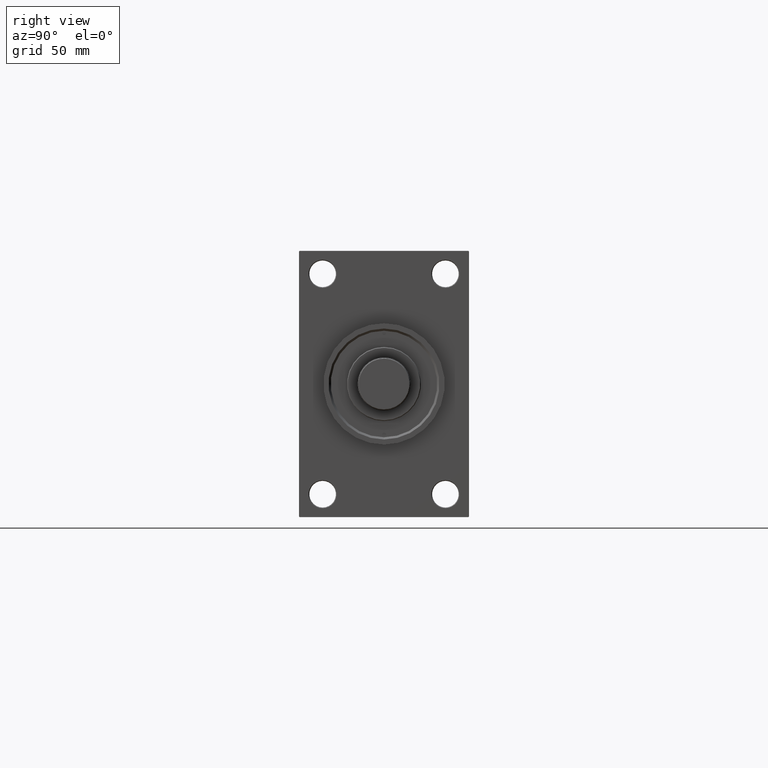
[diagram: clean part render]
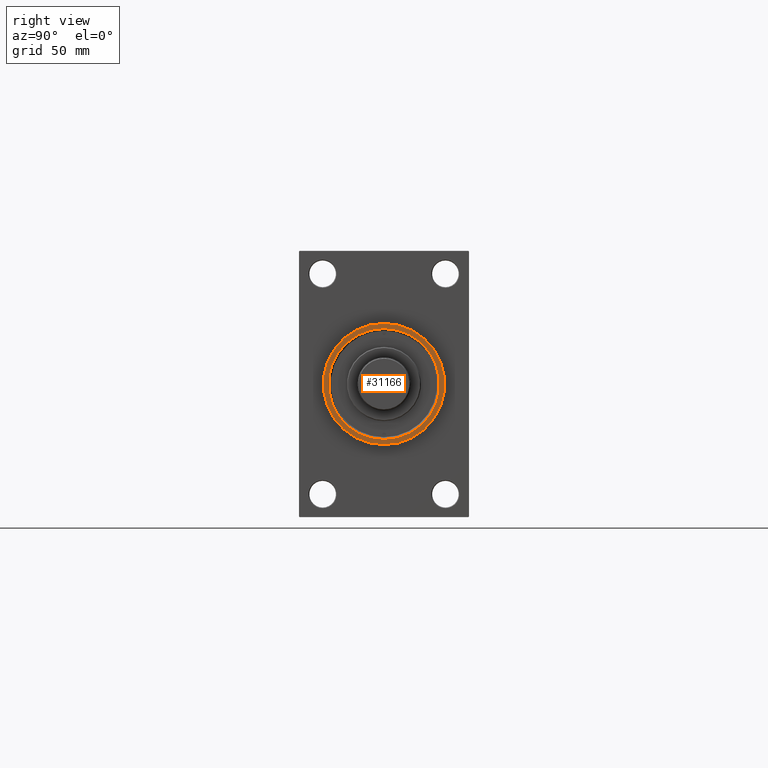
[diagram: same view with one face highlighted and labeled with its STEP entity id]
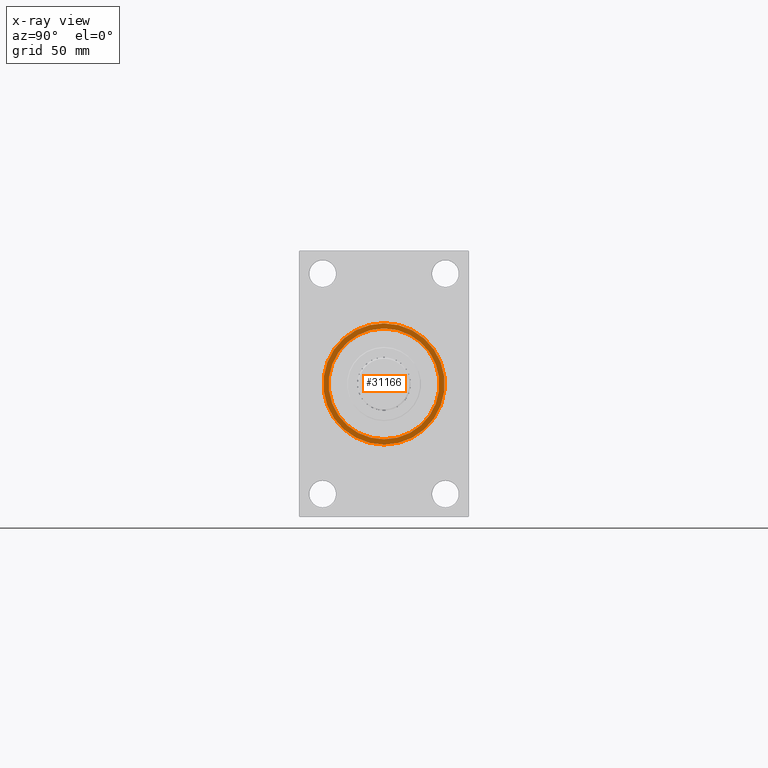
[diagram: x-ray of the same camera — body ghosted, the highlighted face saturated]
A machine part, right view. The second image highlights one B-rep face of the part: STEP entity #31166.
The next image is the same camera in x-ray: the body ghosted, the highlighted face saturated — about 0% of this face is hidden behind the body in this view.
In plain terms, the highlighted planar face has unit normal (1, 0, 0).
Its self-contained STEP definition (entity closure, byte-faithful):
#2672 = CIRCLE ( 'NONE', #24519, 41.00000000000000000 ) ;
#3345 = CIRCLE ( 'NONE', #40822, 37.49999999999997868 ) ;
#3478 = DIRECTION ( 'NONE',  ( 1.000000000000000000, 0.000000000000000000, 0.000000000000000000 ) ) ;
#6581 = AXIS2_PLACEMENT_3D ( 'NONE', #7702, #22617, #21643 ) ;
#6694 = DIRECTION ( 'NONE',  ( 0.000000000000000000, 0.000000000000000000, -1.000000000000000000 ) ) ;
#6905 = CARTESIAN_POINT ( 'NONE',  ( 359.0000000000000000, 0.000000000000000000, -37.49999999999997868 ) ) ;
#7702 = CARTESIAN_POINT ( 'NONE',  ( 359.0000000000000000, 0.000000000000000000, 0.000000000000000000 ) ) ;
#8689 = AXIS2_PLACEMENT_3D ( 'NONE', #42121, #20592, #23794 ) ;
#9241 = CARTESIAN_POINT ( 'NONE',  ( 359.0000000000000000, 5.021051876504148963E-15, -41.00000000000000000 ) ) ;
#14563 = PLANE ( 'NONE',  #29297 ) ;
#14930 = EDGE_LOOP ( 'NONE', ( #37754, #17394 ) ) ;
#17394 = ORIENTED_EDGE ( 'NONE', *, *, #19224, .T. ) ;
#17933 = ORIENTED_EDGE ( 'NONE', *, *, #34056, .T. ) ;
#19224 = EDGE_CURVE ( 'NONE', #31853, #33058, #21959, .T. ) ;
#20592 = DIRECTION ( 'NONE',  ( 1.000000000000000000, 0.000000000000000000, 0.000000000000000000 ) ) ;
#21641 = FACE_BOUND ( 'NONE', #33502, .T. ) ;
#21643 = DIRECTION ( 'NONE',  ( 0.000000000000000000, 0.000000000000000000, -1.000000000000000000 ) ) ;
#21959 = CIRCLE ( 'NONE', #8689, 41.00000000000000000 ) ;
#22617 = DIRECTION ( 'NONE',  ( -1.000000000000000000, -0.000000000000000000, -0.000000000000000000 ) ) ;
#23794 = DIRECTION ( 'NONE',  ( 0.000000000000000000, 0.000000000000000000, -1.000000000000000000 ) ) ;
#24519 = AXIS2_PLACEMENT_3D ( 'NONE', #33526, #3478, #25973 ) ;
#25080 = CARTESIAN_POINT ( 'NONE',  ( 359.0000000000000000, 0.000000000000000000, 0.000000000000000000 ) ) ;
#25675 = ORIENTED_EDGE ( 'NONE', *, *, #26273, .T. ) ;
#25973 = DIRECTION ( 'NONE',  ( 0.000000000000000000, 0.000000000000000000, -1.000000000000000000 ) ) ;
#26273 = EDGE_CURVE ( 'NONE', #44467, #38690, #3345, .T. ) ;
#28898 = CARTESIAN_POINT ( 'NONE',  ( 359.0000000000000000, 0.000000000000000000, 41.00000000000000000 ) ) ;
#29297 = AXIS2_PLACEMENT_3D ( 'NONE', #25080, #36790, #47797 ) ;
#29355 = EDGE_CURVE ( 'NONE', #33058, #31853, #2672, .T. ) ;
#31166 = ADVANCED_FACE ( 'NONE', ( #21641, #47554 ), #14563, .T. ) ;
#31286 = CARTESIAN_POINT ( 'NONE',  ( 359.0000000000000000, 4.592425496802571211E-15, 37.49999999999997868 ) ) ;
#31853 = VERTEX_POINT ( 'NONE', #9241 ) ;
#33058 = VERTEX_POINT ( 'NONE', #28898 ) ;
#33502 = EDGE_LOOP ( 'NONE', ( #17933, #25675 ) ) ;
#33526 = CARTESIAN_POINT ( 'NONE',  ( 359.0000000000000000, 0.000000000000000000, 0.000000000000000000 ) ) ;
#34056 = EDGE_CURVE ( 'NONE', #38690, #44467, #36261, .T. ) ;
#36261 = CIRCLE ( 'NONE', #6581, 37.49999999999997868 ) ;
#36790 = DIRECTION ( 'NONE',  ( 1.000000000000000000, 0.000000000000000000, 0.000000000000000000 ) ) ;
#37754 = ORIENTED_EDGE ( 'NONE', *, *, #29355, .T. ) ;
#38690 = VERTEX_POINT ( 'NONE', #6905 ) ;
#40170 = CARTESIAN_POINT ( 'NONE',  ( 359.0000000000000000, 0.000000000000000000, 0.000000000000000000 ) ) ;
#40822 = AXIS2_PLACEMENT_3D ( 'NONE', #40170, #43599, #6694 ) ;
#42121 = CARTESIAN_POINT ( 'NONE',  ( 359.0000000000000000, 0.000000000000000000, 0.000000000000000000 ) ) ;
#43599 = DIRECTION ( 'NONE',  ( -1.000000000000000000, -0.000000000000000000, -0.000000000000000000 ) ) ;
#44467 = VERTEX_POINT ( 'NONE', #31286 ) ;
#47554 = FACE_OUTER_BOUND ( 'NONE', #14930, .T. ) ;
#47797 = DIRECTION ( 'NONE',  ( 0.000000000000000000, 0.000000000000000000, -1.000000000000000000 ) ) ;